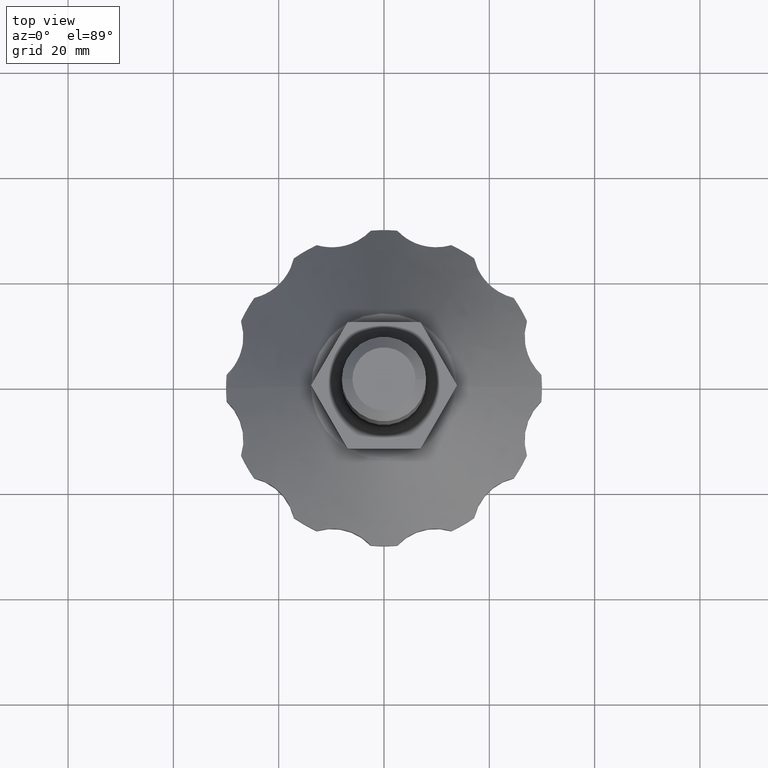
[diagram: clean part render]
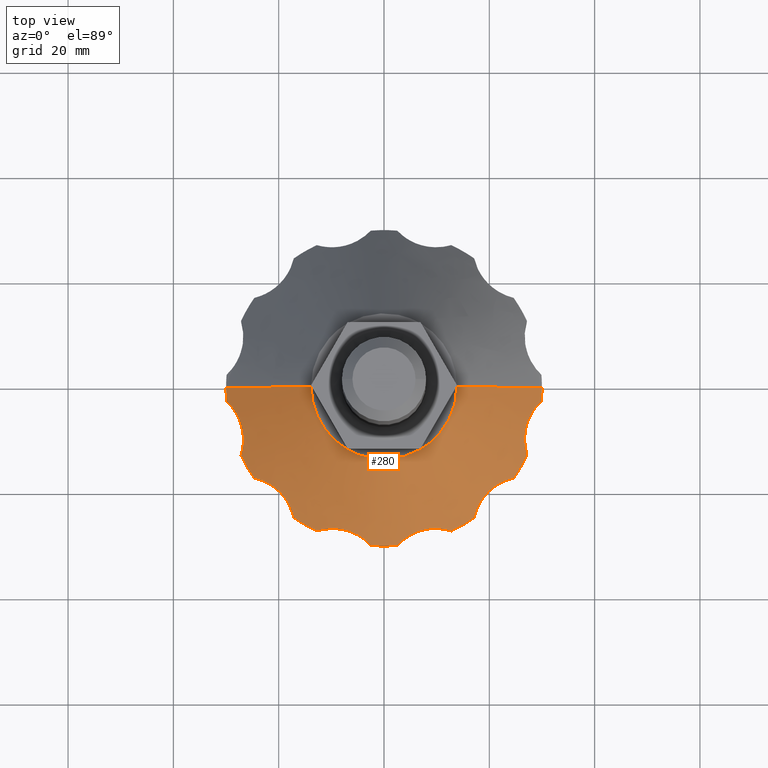
[diagram: same view with one face highlighted and labeled with its STEP entity id]
A machine part, top view. The second image highlights one B-rep face of the part: STEP entity #280.
In plain terms, the highlighted face is a freeform B-spline surface patch.
Its self-contained STEP definition (entity closure, byte-faithful):
#280=ADVANCED_FACE('',(#1245),#1244,.T.);
#1244=( BOUNDED_SURFACE() B_SPLINE_SURFACE( 2,1,((#2014,#2015),(#2016,#2017),(#2018,#2019),(#2020,#2021),(#2022,#2023)), .UNSPECIFIED.,.F.,.F.,.F.) B_SPLINE_SURFACE_WITH_KNOTS((3,2,3),(2,2),(0.00000000000E+00,5.00000000000E-01,1.00000000000E+00),(0.00000000000E+00,1.00000000000E+00), .UNSPECIFIED. ) GEOMETRIC_REPRESENTATION_ITEM() RATIONAL_B_SPLINE_SURFACE(((1.00000000000E+00,1.00000000000E+00),(7.07106781187E-01,7.07106781187E-01),(1.00000000000E+00,1.00000000000E+00),(7.07106781187E-01,7.07106781187E-01),(1.00000000000E+00,1.00000000000E+00))) REPRESENTATION_ITEM('') SURFACE() );
#1245=FACE_OUTER_BOUND('',#2024,.T.);
#2014=CARTESIAN_POINT('',(1.38500000000E+01,-3.39227163364E-15,3.00000000000E+01));
#2015=CARTESIAN_POINT('',(3.00007658349E+01,-7.34806837032E-15,1.09990990178E+01));
#2016=CARTESIAN_POINT('',(1.38500000000E+01,-1.38500000000E+01,3.00000000000E+01));
#2017=CARTESIAN_POINT('',(3.00007658349E+01,-3.00007658349E+01,1.09990990178E+01));
#2018=CARTESIAN_POINT('',(-2.54420372523E-15,-1.38500000000E+01,3.00000000000E+01));
#2019=CARTESIAN_POINT('',(-5.51105127774E-15,-3.00007658349E+01,1.09990990178E+01));
#2020=CARTESIAN_POINT('',(-1.38500000000E+01,-1.38500000000E+01,3.00000000000E+01));
#2021=CARTESIAN_POINT('',(-3.00007658349E+01,-3.00007658349E+01,1.09990990178E+01));
#2022=CARTESIAN_POINT('',(-1.38500000000E+01,1.69613581682E-15,3.00000000000E+01));
#2023=CARTESIAN_POINT('',(-3.00007658349E+01,3.67403418516E-15,1.09990990178E+01));
#2024=EDGE_LOOP('',(#2606,#2607,#2608,#2609,#2610,#2611,#2612,#2613,#2614,#2615,#2616,#2617,#2618,#2619,#2620,#2621,#2622,#2623,#2624,#2625));
#2606=ORIENTED_EDGE('',*,*,#2914,.F.);
#2607=ORIENTED_EDGE('',*,*,#2924,.T.);
#2608=ORIENTED_EDGE('',*,*,#2872,.F.);
#2609=ORIENTED_EDGE('',*,*,#2854,.T.);
#2610=ORIENTED_EDGE('',*,*,#2870,.F.);
#2611=ORIENTED_EDGE('',*,*,#2850,.T.);
#2612=ORIENTED_EDGE('',*,*,#2875,.F.);
#2613=ORIENTED_EDGE('',*,*,#2846,.T.);
#2614=ORIENTED_EDGE('',*,*,#2922,.F.);
#2615=ORIENTED_EDGE('',*,*,#2923,.T.);
#2616=ORIENTED_EDGE('',*,*,#2919,.F.);
#2617=ORIENTED_EDGE('',*,*,#2842,.T.);
#2618=ORIENTED_EDGE('',*,*,#2918,.F.);
#2619=ORIENTED_EDGE('',*,*,#2933,.F.);
#2620=ORIENTED_EDGE('',*,*,#2822,.T.);
#2621=ORIENTED_EDGE('',*,*,#2899,.T.);
#2622=ORIENTED_EDGE('',*,*,#2909,.T.);
#2623=ORIENTED_EDGE('',*,*,#2902,.T.);
#2624=ORIENTED_EDGE('',*,*,#2908,.T.);
#2625=ORIENTED_EDGE('',*,*,#2934,.T.);
#2822=EDGE_CURVE('',#3786,#3800,#3807,.T.);
#2842=EDGE_CURVE('',#3925,#3940,#3947,.T.);
#2846=EDGE_CURVE('',#3953,#3968,#3975,.T.);
#2850=EDGE_CURVE('',#3981,#3996,#4003,.T.);
#2854=EDGE_CURVE('',#4009,#4024,#4031,.T.);
#2870=EDGE_CURVE('',#3981,#4024,#4141,.T.);
#2872=EDGE_CURVE('',#4009,#4154,#4155,.T.);
#2875=EDGE_CURVE('',#3953,#3996,#4173,.T.);
#2899=EDGE_CURVE('',#3800,#4321,#4328,.T.);
#2902=EDGE_CURVE('',#4320,#4340,#4347,.T.);
#2908=EDGE_CURVE('',#4340,#3773,#4385,.T.);
#2909=EDGE_CURVE('',#4321,#4320,#4391,.T.);
#2914=EDGE_CURVE('',#4415,#4422,#4423,.T.);
#2918=EDGE_CURVE('',#4441,#3940,#4448,.T.);
#2919=EDGE_CURVE('',#3925,#4454,#4455,.T.);
#2922=EDGE_CURVE('',#4467,#3968,#4474,.T.);
#2923=EDGE_CURVE('',#4467,#4454,#4480,.T.);
#2924=EDGE_CURVE('',#4415,#4154,#4486,.T.);
#2933=EDGE_CURVE('',#3786,#4441,#4544,.T.);
#2934=EDGE_CURVE('',#3773,#4422,#4550,.T.);
#3773=VERTEX_POINT('',#5179);
#3786=VERTEX_POINT('',#5185);
#3800=VERTEX_POINT('',#5194);
#3807=(BOUNDED_CURVE() B_SPLINE_CURVE(2,(#5197,#5198,#5199),.UNSPECIFIED.,.F.,.F.) B_SPLINE_CURVE_WITH_KNOTS((3,3),(0.00000000000E+00,1.00000000000E+00),.UNSPECIFIED.) CURVE() GEOMETRIC_REPRESENTATION_ITEM() RATIONAL_B_SPLINE_CURVE((1.00000000000E+00,8.66025410981E-01,1.00000000000E+00)) REPRESENTATION_ITEM('') );
#3925=VERTEX_POINT('',#5310);
#3940=VERTEX_POINT('',#5320);
#3947=(BOUNDED_CURVE() B_SPLINE_CURVE(3,(#5324,#5325,#5326,#5327,#5328,#5329,#5330,#5331,#5332,#5333,#5334,#5335,#5336,#5337,#5338,#5339,#5340,#5341,#5342,#5343,#5344,#5345,#5346,#5347),.UNSPECIFIED.,.F.,.F.) B_SPLINE_CURVE_WITH_KNOTS((4,2,2,2,2,2,2,2,2,2,2,4),(2.64582014218E-07,1.54217607988E-03,2.31313182881E-03,3.08408757774E-03,4.62599907560E-03,5.39695482453E-03,6.16791057346E-03,6.93886632239E-03,7.70982207132E-03,9.25173356918E-03,1.07936450670E-02,1.23355565649E-02),.UNSPECIFIED.) CURVE() GEOMETRIC_REPRESENTATION_ITEM() RATIONAL_B_SPLINE_CURVE((1.00000000000E+00,1.00000000000E+00,1.00000000000E+00,1.00000000000E+00,1.00000000000E+00,1.00000000000E+00,1.00000000000E+00,1.00000000000E+00,1.00000000000E+00,1.00000000000E+00,1.00000000000E+00,1.00000000000E+00,1.00000000000E+00,1.00000000000E+00,1.00000000000E+00,1.00000000000E+00,1.00000000000E+00,1.00000000000E+00,1.00000000000E+00,1.00000000000E+00,1.00000000000E+00,1.00000000000E+00,1.00000000000E+00,1.00000000000E+00)) REPRESENTATION_ITEM('') );
#3953=VERTEX_POINT('',#5348);
#3968=VERTEX_POINT('',#5358);
#3975=(BOUNDED_CURVE() B_SPLINE_CURVE(3,(#5362,#5363,#5364,#5365,#5366,#5367,#5368,#5369,#5370,#5371,#5372,#5373,#5374,#5375,#5376,#5377,#5378,#5379,#5380,#5381,#5382,#5383,#5384,#5385),.UNSPECIFIED.,.F.,.F.) B_SPLINE_CURVE_WITH_KNOTS((4,2,2,2,2,2,2,2,2,2,2,4),(3.20361951383E-07,1.54223168861E-03,2.31318735194E-03,3.08414301527E-03,4.62605434193E-03,5.39701000527E-03,6.16796566860E-03,6.93892133193E-03,7.70987699526E-03,9.25178832192E-03,1.07936996486E-02,1.23356109752E-02),.UNSPECIFIED.) CURVE() GEOMETRIC_REPRESENTATION_ITEM() RATIONAL_B_SPLINE_CURVE((1.00000000000E+00,1.00000000000E+00,1.00000000000E+00,1.00000000000E+00,1.00000000000E+00,1.00000000000E+00,1.00000000000E+00,1.00000000000E+00,1.00000000000E+00,1.00000000000E+00,1.00000000000E+00,1.00000000000E+00,1.00000000000E+00,1.00000000000E+00,1.00000000000E+00,1.00000000000E+00,1.00000000000E+00,1.00000000000E+00,1.00000000000E+00,1.00000000000E+00,1.00000000000E+00,1.00000000000E+00,1.00000000000E+00,1.00000000000E+00)) REPRESENTATION_ITEM('') );
#3981=VERTEX_POINT('',#5386);
#3996=VERTEX_POINT('',#5396);
#4003=(BOUNDED_CURVE() B_SPLINE_CURVE(3,(#5400,#5401,#5402,#5403,#5404,#5405,#5406,#5407,#5408,#5409,#5410,#5411,#5412,#5413,#5414,#5415,#5416,#5417,#5418,#5419,#5420,#5421,#5422,#5423),.UNSPECIFIED.,.F.,.F.) B_SPLINE_CURVE_WITH_KNOTS((4,2,2,2,2,2,2,2,2,2,2,4),(2.64582014228E-07,1.54217607988E-03,2.31313182881E-03,3.08408757774E-03,4.62599907560E-03,5.39695482453E-03,6.16791057346E-03,6.93886632239E-03,7.70982207132E-03,9.25173356918E-03,1.07936450670E-02,1.23355565649E-02),.UNSPECIFIED.) CURVE() GEOMETRIC_REPRESENTATION_ITEM() RATIONAL_B_SPLINE_CURVE((1.00000000000E+00,1.00000000000E+00,1.00000000000E+00,1.00000000000E+00,1.00000000000E+00,1.00000000000E+00,1.00000000000E+00,1.00000000000E+00,1.00000000000E+00,1.00000000000E+00,1.00000000000E+00,1.00000000000E+00,1.00000000000E+00,1.00000000000E+00,1.00000000000E+00,1.00000000000E+00,1.00000000000E+00,1.00000000000E+00,1.00000000000E+00,1.00000000000E+00,1.00000000000E+00,1.00000000000E+00,1.00000000000E+00,1.00000000000E+00)) REPRESENTATION_ITEM('') );
#4009=VERTEX_POINT('',#5424);
#4024=VERTEX_POINT('',#5434);
#4031=(BOUNDED_CURVE() B_SPLINE_CURVE(3,(#5438,#5439,#5440,#5441,#5442,#5443,#5444,#5445,#5446,#5447,#5448,#5449,#5450,#5451,#5452,#5453,#5454,#5455,#5456,#5457,#5458,#5459,#5460,#5461),.UNSPECIFIED.,.F.,.F.) B_SPLINE_CURVE_WITH_KNOTS((4,2,2,2,2,2,2,2,2,2,2,4),(2.59932542005E-07,1.54217121241E-03,2.31312685235E-03,3.08408249228E-03,4.62599377215E-03,5.39694941209E-03,6.16790505202E-03,6.93886069196E-03,7.70981633189E-03,9.25172761176E-03,1.07936388916E-02,1.23355501715E-02),.UNSPECIFIED.) CURVE() GEOMETRIC_REPRESENTATION_ITEM() RATIONAL_B_SPLINE_CURVE((1.00000000000E+00,1.00000000000E+00,1.00000000000E+00,1.00000000000E+00,1.00000000000E+00,1.00000000000E+00,1.00000000000E+00,1.00000000000E+00,1.00000000000E+00,1.00000000000E+00,1.00000000000E+00,1.00000000000E+00,1.00000000000E+00,1.00000000000E+00,1.00000000000E+00,1.00000000000E+00,1.00000000000E+00,1.00000000000E+00,1.00000000000E+00,1.00000000000E+00,1.00000000000E+00,1.00000000000E+00,1.00000000000E+00,1.00000000000E+00)) REPRESENTATION_ITEM('') );
#4141=CIRCLE('',#5593,3.00000000000E+01);
#4154=VERTEX_POINT('',#5599);
#4155=CIRCLE('',#5603,3.00000000000E+01);
#4173=CIRCLE('',#5614,3.00000000000E+01);
#4320=VERTEX_POINT('',#5706);
#4321=VERTEX_POINT('',#5707);
#4328=(BOUNDED_CURVE() B_SPLINE_CURVE(2,(#5710,#5711,#5712),.UNSPECIFIED.,.F.,.F.) B_SPLINE_CURVE_WITH_KNOTS((3,3),(0.00000000000E+00,1.00000000000E+00),.UNSPECIFIED.) CURVE() GEOMETRIC_REPRESENTATION_ITEM() RATIONAL_B_SPLINE_CURVE((1.00000000000E+00,9.99999919647E-01,1.00000000000E+00)) REPRESENTATION_ITEM('') );
#4340=VERTEX_POINT('',#5715);
#4347=(BOUNDED_CURVE() B_SPLINE_CURVE(2,(#5719,#5720,#5721),.UNSPECIFIED.,.F.,.F.) B_SPLINE_CURVE_WITH_KNOTS((3,3),(0.00000000000E+00,1.00000000000E+00),.UNSPECIFIED.) CURVE() GEOMETRIC_REPRESENTATION_ITEM() RATIONAL_B_SPLINE_CURVE((1.00000000000E+00,9.99999919647E-01,1.00000000000E+00)) REPRESENTATION_ITEM('') );
#4385=CIRCLE('',#5743,1.38500000000E+01);
#4391=(BOUNDED_CURVE() B_SPLINE_CURVE(2,(#5744,#5745,#5746),.UNSPECIFIED.,.F.,.F.) B_SPLINE_CURVE_WITH_KNOTS((3,3),(0.00000000000E+00,1.00000000000E+00),.UNSPECIFIED.) CURVE() GEOMETRIC_REPRESENTATION_ITEM() RATIONAL_B_SPLINE_CURVE((1.00000000000E+00,8.66425992780E-01,1.00000000000E+00)) REPRESENTATION_ITEM('') );
#4415=VERTEX_POINT('',#5759);
#4422=VERTEX_POINT('',#5763);
#4423=CIRCLE('',#5767,3.00000000000E+01);
#4441=VERTEX_POINT('',#5776);
#4448=CIRCLE('',#5784,3.00000000000E+01);
#4454=VERTEX_POINT('',#5785);
#4455=CIRCLE('',#5789,3.00000000000E+01);
#4467=VERTEX_POINT('',#5793);
#4474=CIRCLE('',#5800,3.00000000000E+01);
#4480=(BOUNDED_CURVE() B_SPLINE_CURVE(3,(#5801,#5802,#5803,#5804,#5805,#5806,#5807,#5808,#5809,#5810,#5811,#5812,#5813,#5814,#5815,#5816,#5817,#5818,#5819,#5820,#5821,#5822,#5823,#5824),.UNSPECIFIED.,.F.,.F.) B_SPLINE_CURVE_WITH_KNOTS((4,2,2,2,2,2,2,2,2,2,2,4),(2.59932541972E-07,1.54217121241E-03,2.31312685235E-03,3.08408249228E-03,4.62599377215E-03,5.39694941209E-03,6.16790505202E-03,6.93886069196E-03,7.70981633189E-03,9.25172761176E-03,1.07936388916E-02,1.23355501715E-02),.UNSPECIFIED.) CURVE() GEOMETRIC_REPRESENTATION_ITEM() RATIONAL_B_SPLINE_CURVE((1.00000000000E+00,1.00000000000E+00,1.00000000000E+00,1.00000000000E+00,1.00000000000E+00,1.00000000000E+00,1.00000000000E+00,1.00000000000E+00,1.00000000000E+00,1.00000000000E+00,1.00000000000E+00,1.00000000000E+00,1.00000000000E+00,1.00000000000E+00,1.00000000000E+00,1.00000000000E+00,1.00000000000E+00,1.00000000000E+00,1.00000000000E+00,1.00000000000E+00,1.00000000000E+00,1.00000000000E+00,1.00000000000E+00,1.00000000000E+00)) REPRESENTATION_ITEM('') );
#4486=(BOUNDED_CURVE() B_SPLINE_CURVE(3,(#5825,#5826,#5827,#5828,#5829,#5830,#5831,#5832,#5833,#5834,#5835,#5836,#5837,#5838,#5839,#5840,#5841,#5842,#5843,#5844,#5845,#5846,#5847,#5848),.UNSPECIFIED.,.F.,.F.) B_SPLINE_CURVE_WITH_KNOTS((4,2,2,2,2,2,2,2,2,2,2,4),(3.20361951334E-07,1.54223168861E-03,2.31318735194E-03,3.08414301527E-03,4.62605434193E-03,5.39701000527E-03,6.16796566860E-03,6.93892133193E-03,7.70987699526E-03,9.25178832192E-03,1.07936996486E-02,1.23356109752E-02),.UNSPECIFIED.) CURVE() GEOMETRIC_REPRESENTATION_ITEM() RATIONAL_B_SPLINE_CURVE((1.00000000000E+00,1.00000000000E+00,1.00000000000E+00,1.00000000000E+00,1.00000000000E+00,1.00000000000E+00,1.00000000000E+00,1.00000000000E+00,1.00000000000E+00,1.00000000000E+00,1.00000000000E+00,1.00000000000E+00,1.00000000000E+00,1.00000000000E+00,1.00000000000E+00,1.00000000000E+00,1.00000000000E+00,1.00000000000E+00,1.00000000000E+00,1.00000000000E+00,1.00000000000E+00,1.00000000000E+00,1.00000000000E+00,1.00000000000E+00)) REPRESENTATION_ITEM('') );
#4544=(BOUNDED_CURVE() B_SPLINE_CURVE(1,(#5879,#5880),.UNSPECIFIED.,.F.,.F.) B_SPLINE_CURVE_WITH_KNOTS((2,2),(0.00000000000E+00,9.99952583014E-01),.UNSPECIFIED.) CURVE() GEOMETRIC_REPRESENTATION_ITEM() RATIONAL_B_SPLINE_CURVE((1.00000000000E+00,1.00000000000E+00)) REPRESENTATION_ITEM('') );
#4550=(BOUNDED_CURVE() B_SPLINE_CURVE(1,(#5881,#5882),.UNSPECIFIED.,.F.,.F.) B_SPLINE_CURVE_WITH_KNOTS((2,2),(0.00000000000E+00,1.00000000000E+00),.UNSPECIFIED.) CURVE() GEOMETRIC_REPRESENTATION_ITEM() RATIONAL_B_SPLINE_CURVE((7.50000000000E-01,7.50000000000E-01)) REPRESENTATION_ITEM('') );
#5179=CARTESIAN_POINT('',(-1.38500000000E+01,8.67361737988E-16,3.00000000000E+01));
#5185=CARTESIAN_POINT('',(1.38500000000E+01,2.60208521397E-15,3.00000000000E+01));
#5194=CARTESIAN_POINT('',(6.92500034525E+00,-1.19944516431E+01,3.00000000000E+01));
#5197=CARTESIAN_POINT('',(1.38500000000E+01,0.00000000000E+00,3.00000000000E+01));
#5198=CARTESIAN_POINT('',(1.38500000000E+01,-7.99630096250E+00,3.00000000000E+01));
#5199=CARTESIAN_POINT('',(6.92500034525E+00,-1.19944516431E+01,3.00000000000E+01));
#5310=CARTESIAN_POINT('',(2.71458873925E+01,-1.27710915962E+01,1.10000000000E+01));
#5320=CARTESIAN_POINT('',(2.98945741392E+01,-2.51285436012E+00,1.10000000000E+01));
#5324=CARTESIAN_POINT('',(2.71458874354E+01,-1.27710917360E+01,1.10000002199E+01));
#5325=CARTESIAN_POINT('',(2.70266444296E+01,-1.23828453378E+01,1.13213840486E+01));
#5326=CARTESIAN_POINT('',(2.69279323332E+01,-1.19780803252E+01,1.16240062431E+01));
#5327=CARTESIAN_POINT('',(2.68165951845E+01,-1.13393127835E+01,1.20413010774E+01));
#5328=CARTESIAN_POINT('',(2.67856418039E+01,-1.11210831804E+01,1.21742483074E+01));
#5329=CARTESIAN_POINT('',(2.67377210312E+01,-1.06721966654E+01,1.24256161551E+01));
#5330=CARTESIAN_POINT('',(2.67207986216E+01,-1.04408701961E+01,1.25442453490E+01));
#5331=CARTESIAN_POINT('',(2.66946850316E+01,-9.73894608204E+00,1.28677000731E+01));
#5332=CARTESIAN_POINT('',(2.67092209926E+01,-9.25679760961E+00,1.30428890816E+01));
#5333=CARTESIAN_POINT('',(2.67907428662E+01,-8.50571211422E+00,1.32264962782E+01));
#5334=CARTESIAN_POINT('',(2.68279916549E+01,-8.25198662097E+00,1.32737938046E+01));
#5335=CARTESIAN_POINT('',(2.69216535676E+01,-7.74998987960E+00,1.33366994791E+01));
#5336=CARTESIAN_POINT('',(2.69782303781E+01,-7.49998821336E+00,1.33527665969E+01));
#5337=CARTESIAN_POINT('',(2.71114340807E+01,-7.00202541499E+00,1.33531136495E+01));
#5338=CARTESIAN_POINT('',(2.71887970428E+01,-6.75222365016E+00,1.33370187894E+01));
#5339=CARTESIAN_POINT('',(2.73594235269E+01,-6.26824084487E+00,1.32739648627E+01));
#5340=CARTESIAN_POINT('',(2.74527700860E+01,-6.03309538153E+00,1.32272786773E+01));
#5341=CARTESIAN_POINT('',(2.77551564812E+01,-5.34656315490E+00,1.30456575007E+01));
#5342=CARTESIAN_POINT('',(2.79887749309E+01,-4.91153485894E+00,1.28668107963E+01));
#5343=CARTESIAN_POINT('',(2.84848111054E+01,-4.12172014694E+00,1.24373280020E+01));
#5344=CARTESIAN_POINT('',(2.87494499895E+01,-3.76095908609E+00,1.21857413405E+01));
#5345=CARTESIAN_POINT('',(2.93068171025E+01,-3.09321425916E+00,1.16266447996E+01));
#5346=CARTESIAN_POINT('',(2.95969996401E+01,-2.78963495678E+00,1.13215824949E+01));
#5347=CARTESIAN_POINT('',(2.98945741082E+01,-2.51285428599E+00,1.10000000437E+01));
#5348=CARTESIAN_POINT('',(2.51285467329E+00,-2.98945736918E+01,1.10000000000E+01));
#5358=CARTESIAN_POINT('',(1.27710913577E+01,-2.71458878199E+01,1.10000000000E+01));
#5362=CARTESIAN_POINT('',(2.51285452678E+00,-2.98945738493E+01,1.10000003235E+01));
#5363=CARTESIAN_POINT('',(2.78946408521E+00,-2.95971833699E+01,1.13213839369E+01));
#5364=CARTESIAN_POINT('',(3.09064468017E+00,-2.93093137765E+01,1.16240060317E+01));
#5365=CARTESIAN_POINT('',(3.58816497566E+00,-2.88935092027E+01,1.20413008703E+01));
#5366=CARTESIAN_POINT('',(3.76168067690E+00,-2.87575879612E+01,1.21742481272E+01));
#5367=CARTESIAN_POINT('',(4.12646752328E+00,-2.84916439945E+01,1.24256160713E+01));
#5368=CARTESIAN_POINT('',(4.31834084965E+00,-2.83613255631E+01,1.25442452259E+01));
#5369=CARTESIAN_POINT('',(4.91316787168E+00,-2.79877486147E+01,1.28676998348E+01));
#5370=CARTESIAN_POINT('',(5.33798862991E+00,-2.77592628445E+01,1.30428889154E+01));
#5371=CARTESIAN_POINT('',(6.02920907811E+00,-2.74543198967E+01,1.32264962544E+01));
#5372=CARTESIAN_POINT('',(6.26756592027E+00,-2.73597156490E+01,1.32737937297E+01));
#5373=CARTESIAN_POINT('',(6.74913864311E+00,-2.71898308931E+01,1.33366994264E+01));
#5374=CARTESIAN_POINT('',(6.99393483977E+00,-2.71138269898E+01,1.33527665760E+01));
#5375=CARTESIAN_POINT('',(7.49178530083E+00,-2.69802032965E+01,1.33531136698E+01));
#5376=CARTESIAN_POINT('',(7.74680154606E+00,-2.69223006753E+01,1.33370188092E+01));
#5377=CARTESIAN_POINT('',(8.25125592259E+00,-2.68280761594E+01,1.32739649514E+01));
#5378=CARTESIAN_POINT('',(8.50157109185E+00,-2.67913439030E+01,1.32272788056E+01));
#5379=CARTESIAN_POINT('',(9.24731868307E+00,-2.67099520236E+01,1.30456576875E+01));
#5380=CARTESIAN_POINT('',(9.74087343850E+00,-2.66947573551E+01,1.28668110274E+01));
#5381=CARTESIAN_POINT('',(1.06728909776E+01,-2.67294298398E+01,1.24373283956E+01));
#5382=CARTESIAN_POINT('',(1.11176387677E+01,-2.67782332633E+01,1.21857417385E+01));
#5383=CARTESIAN_POINT('',(1.19746067344E+01,-2.69270549461E+01,1.16266449745E+01));
#5384=CARTESIAN_POINT('',(1.23826052180E+01,-2.70265706841E+01,1.13215828118E+01));
#5385=CARTESIAN_POINT('',(1.27710916665E+01,-2.71458874141E+01,1.10000002774E+01));
#5386=CARTESIAN_POINT('',(-1.27710915962E+01,-2.71458873925E+01,1.10000000000E+01));
#5396=CARTESIAN_POINT('',(-2.51285436012E+00,-2.98945741392E+01,1.10000000000E+01));
#5400=CARTESIAN_POINT('',(-1.27710917360E+01,-2.71458874354E+01,1.10000002199E+01));
#5401=CARTESIAN_POINT('',(-1.23828453378E+01,-2.70266444296E+01,1.13213840486E+01));
#5402=CARTESIAN_POINT('',(-1.19780803252E+01,-2.69279323332E+01,1.16240062431E+01));
#5403=CARTESIAN_POINT('',(-1.13393127835E+01,-2.68165951845E+01,1.20413010774E+01));
#5404=CARTESIAN_POINT('',(-1.11210831804E+01,-2.67856418039E+01,1.21742483074E+01));
#5405=CARTESIAN_POINT('',(-1.06721966654E+01,-2.67377210312E+01,1.24256161551E+01));
#5406=CARTESIAN_POINT('',(-1.04408701961E+01,-2.67207986216E+01,1.25442453490E+01));
#5407=CARTESIAN_POINT('',(-9.73894608204E+00,-2.66946850316E+01,1.28677000731E+01));
#5408=CARTESIAN_POINT('',(-9.25679760961E+00,-2.67092209926E+01,1.30428890816E+01));
#5409=CARTESIAN_POINT('',(-8.50571211422E+00,-2.67907428662E+01,1.32264962782E+01));
#5410=CARTESIAN_POINT('',(-8.25198662097E+00,-2.68279916549E+01,1.32737938046E+01));
#5411=CARTESIAN_POINT('',(-7.74998987960E+00,-2.69216535676E+01,1.33366994791E+01));
#5412=CARTESIAN_POINT('',(-7.49998821336E+00,-2.69782303781E+01,1.33527665969E+01));
#5413=CARTESIAN_POINT('',(-7.00202541499E+00,-2.71114340807E+01,1.33531136495E+01));
#5414=CARTESIAN_POINT('',(-6.75222365016E+00,-2.71887970428E+01,1.33370187894E+01));
#5415=CARTESIAN_POINT('',(-6.26824084487E+00,-2.73594235269E+01,1.32739648627E+01));
#5416=CARTESIAN_POINT('',(-6.03309538153E+00,-2.74527700860E+01,1.32272786773E+01));
#5417=CARTESIAN_POINT('',(-5.34656315490E+00,-2.77551564812E+01,1.30456575007E+01));
#5418=CARTESIAN_POINT('',(-4.91153485894E+00,-2.79887749309E+01,1.28668107963E+01));
#5419=CARTESIAN_POINT('',(-4.12172014694E+00,-2.84848111054E+01,1.24373280020E+01));
#5420=CARTESIAN_POINT('',(-3.76095908609E+00,-2.87494499895E+01,1.21857413405E+01));
#5421=CARTESIAN_POINT('',(-3.09321425916E+00,-2.93068171025E+01,1.16266447996E+01));
#5422=CARTESIAN_POINT('',(-2.78963495678E+00,-2.95969996401E+01,1.13215824949E+01));
#5423=CARTESIAN_POINT('',(-2.51285428599E+00,-2.98945741082E+01,1.10000000437E+01));
#5424=CARTESIAN_POINT('',(-2.46330337192E+01,-1.71234830956E+01,1.10000000000E+01));
#5434=CARTESIAN_POINT('',(-1.71234827815E+01,-2.46330334598E+01,1.10000000000E+01));
#5438=CARTESIAN_POINT('',(-2.46330335003E+01,-1.71234831458E+01,1.09999997162E+01));
#5439=CARTESIAN_POINT('',(-2.42371808075E+01,-1.72143388747E+01,1.13213834825E+01));
#5440=CARTESIAN_POINT('',(-2.38372880170E+01,-1.73312342001E+01,1.16240056261E+01));
#5441=CARTESIAN_POINT('',(-2.32284306071E+01,-1.75541971571E+01,1.20413003781E+01));
#5442=CARTESIAN_POINT('',(-2.30239615677E+01,-1.76365055367E+01,1.21742475798E+01));
#5443=CARTESIAN_POINT('',(-2.26112541269E+01,-1.78194481626E+01,1.24256153702E+01));
#5444=CARTESIAN_POINT('',(-2.24024583470E+01,-1.79204561507E+01,1.25442445448E+01));
#5445=CARTESIAN_POINT('',(-2.17815175028E+01,-1.82488031442E+01,1.28676992195E+01));
#5446=CARTESIAN_POINT('',(-2.13712327182E+01,-1.85024658556E+01,1.30428881925E+01));
#5447=CARTESIAN_POINT('',(-2.07615346576E+01,-1.89486085102E+01,1.32264953585E+01));
#5448=CARTESIAN_POINT('',(-2.05604263337E+01,-1.91077296419E+01,1.32737928892E+01));
#5449=CARTESIAN_POINT('',(-2.01725153981E+01,-1.94398415563E+01,1.33366985702E+01));
#5450=CARTESIAN_POINT('',(-1.99842960335E+01,-1.96138393113E+01,1.33527656940E+01));
#5451=CARTESIAN_POINT('',(-1.96196495068E+01,-1.99781784160E+01,1.33531127715E+01));
#5452=CARTESIAN_POINT('',(-1.94419963375E+01,-2.01700775437E+01,1.33370179314E+01));
#5453=CARTESIAN_POINT('',(-1.91081681830E+01,-2.05598357658E+01,1.32739640449E+01));
#5454=CARTESIAN_POINT('',(-1.89511995248E+01,-2.07582489577E+01,1.32272778829E+01));
#5455=CARTESIAN_POINT('',(-1.85078383994E+01,-2.13633892585E+01,1.30456567924E+01));
#5456=CARTESIAN_POINT('',(-1.82479020667E+01,-2.17832228528E+01,1.28668101565E+01));
#5457=CARTESIAN_POINT('',(-1.78119205238E+01,-2.26077100302E+01,1.24373274932E+01));
#5458=CARTESIAN_POINT('',(-1.76318117124E+01,-2.30172744891E+01,1.21857409094E+01));
#5459=CARTESIAN_POINT('',(-1.73322112562E+01,-2.38338408232E+01,1.16266445539E+01));
#5460=CARTESIAN_POINT('',(-1.72143950793E+01,-2.42369359489E+01,1.13215822734E+01));
#5461=CARTESIAN_POINT('',(-1.71234831709E+01,-2.46330333909E+01,1.09999998050E+01));
#5590=CARTESIAN_POINT('',(0.00000000000E+00,0.00000000000E+00,1.10000000000E+01));
#5591=DIRECTION('',(0.00000000000E+00,0.00000000000E+00,-1.00000000000E+00));
#5592=DIRECTION('',(1.00000000000E+00,-0.00000000000E+00,-0.00000000000E+00));
#5593=AXIS2_PLACEMENT_3D('',#5590,#5591,#5592);
#5599=CARTESIAN_POINT('',(-2.71458878199E+01,-1.27710913577E+01,1.10000000000E+01));
#5600=CARTESIAN_POINT('',(0.00000000000E+00,0.00000000000E+00,1.10000000000E+01));
#5601=DIRECTION('',(0.00000000000E+00,0.00000000000E+00,-1.00000000000E+00));
#5602=DIRECTION('',(1.00000000000E+00,-0.00000000000E+00,-0.00000000000E+00));
#5603=AXIS2_PLACEMENT_3D('',#5600,#5601,#5602);
#5611=CARTESIAN_POINT('',(0.00000000000E+00,0.00000000000E+00,1.10000000000E+01));
#5612=DIRECTION('',(0.00000000000E+00,0.00000000000E+00,-1.00000000000E+00));
#5613=DIRECTION('',(1.00000000000E+00,-0.00000000000E+00,-0.00000000000E+00));
#5614=AXIS2_PLACEMENT_3D('',#5611,#5612,#5613);
#5706=CARTESIAN_POINT('',(-6.91538140669E+00,-1.20000000000E+01,3.00000000000E+01));
#5707=CARTESIAN_POINT('',(6.91538140669E+00,-1.20000000000E+01,3.00000000000E+01));
#5710=CARTESIAN_POINT('',(6.92500034525E+00,-1.19944516431E+01,3.00000000000E+01));
#5711=CARTESIAN_POINT('',(6.92019198809E+00,-1.19972277496E+01,3.00000000000E+01));
#5712=CARTESIAN_POINT('',(6.91538140669E+00,-1.20000000000E+01,3.00000000000E+01));
#5715=CARTESIAN_POINT('',(-6.92500034525E+00,-1.19944516431E+01,3.00000000000E+01));
#5719=CARTESIAN_POINT('',(-6.91538140669E+00,-1.20000000000E+01,3.00000000000E+01));
#5720=CARTESIAN_POINT('',(-6.92019198809E+00,-1.19972277496E+01,3.00000000000E+01));
#5721=CARTESIAN_POINT('',(-6.92500034525E+00,-1.19944516431E+01,3.00000000000E+01));
#5740=CARTESIAN_POINT('',(0.00000000000E+00,0.00000000000E+00,3.00000000000E+01));
#5741=DIRECTION('',(0.00000000000E+00,0.00000000000E+00,-1.00000000000E+00));
#5742=DIRECTION('',(1.00000000000E+00,-0.00000000000E+00,-0.00000000000E+00));
#5743=AXIS2_PLACEMENT_3D('',#5740,#5741,#5742);
#5744=CARTESIAN_POINT('',(6.91538140669E+00,-1.20000000000E+01,3.00000000000E+01));
#5745=CARTESIAN_POINT('',(0.00000000000E+00,-1.59852083333E+01,3.00000000000E+01));
#5746=CARTESIAN_POINT('',(-6.91538140669E+00,-1.20000000000E+01,3.00000000000E+01));
#5759=CARTESIAN_POINT('',(-2.98945736918E+01,-2.51285467329E+00,1.10000000000E+01));
#5763=CARTESIAN_POINT('',(-3.00000000000E+01,-2.97169574338E-07,1.10000000000E+01));
#5764=CARTESIAN_POINT('',(0.00000000000E+00,0.00000000000E+00,1.10000000000E+01));
#5765=DIRECTION('',(0.00000000000E+00,0.00000000000E+00,-1.00000000000E+00));
#5766=DIRECTION('',(1.00000000000E+00,-0.00000000000E+00,-0.00000000000E+00));
#5767=AXIS2_PLACEMENT_3D('',#5764,#5765,#5766);
#5776=CARTESIAN_POINT('',(3.00000000000E+01,-7.34036971090E-15,1.10000000000E+01));
#5781=CARTESIAN_POINT('',(0.00000000000E+00,0.00000000000E+00,1.10000000000E+01));
#5782=DIRECTION('',(0.00000000000E+00,0.00000000000E+00,-1.00000000000E+00));
#5783=DIRECTION('',(9.96485803664E-01,8.37618236145E-02,0.00000000000E+00));
#5784=AXIS2_PLACEMENT_3D('',#5781,#5782,#5783);
#5785=CARTESIAN_POINT('',(2.46330334598E+01,-1.71234827815E+01,1.10000000000E+01));
#5786=CARTESIAN_POINT('',(0.00000000000E+00,0.00000000000E+00,1.10000000000E+01));
#5787=DIRECTION('',(0.00000000000E+00,0.00000000000E+00,-1.00000000000E+00));
#5788=DIRECTION('',(1.00000000000E+00,-0.00000000000E+00,-0.00000000000E+00));
#5789=AXIS2_PLACEMENT_3D('',#5786,#5787,#5788);
#5793=CARTESIAN_POINT('',(1.71234830956E+01,-2.46330337192E+01,1.10000000000E+01));
#5797=CARTESIAN_POINT('',(0.00000000000E+00,0.00000000000E+00,1.10000000000E+01));
#5798=DIRECTION('',(0.00000000000E+00,0.00000000000E+00,-1.00000000000E+00));
#5799=DIRECTION('',(1.00000000000E+00,-0.00000000000E+00,-0.00000000000E+00));
#5800=AXIS2_PLACEMENT_3D('',#5797,#5798,#5799);
#5801=CARTESIAN_POINT('',(1.71234831458E+01,-2.46330335003E+01,1.09999997162E+01));
#5802=CARTESIAN_POINT('',(1.72143388747E+01,-2.42371808075E+01,1.13213834825E+01));
#5803=CARTESIAN_POINT('',(1.73312342001E+01,-2.38372880170E+01,1.16240056261E+01));
#5804=CARTESIAN_POINT('',(1.75541971571E+01,-2.32284306071E+01,1.20413003781E+01));
#5805=CARTESIAN_POINT('',(1.76365055367E+01,-2.30239615677E+01,1.21742475798E+01));
#5806=CARTESIAN_POINT('',(1.78194481626E+01,-2.26112541269E+01,1.24256153702E+01));
#5807=CARTESIAN_POINT('',(1.79204561507E+01,-2.24024583470E+01,1.25442445448E+01));
#5808=CARTESIAN_POINT('',(1.82488031442E+01,-2.17815175028E+01,1.28676992195E+01));
#5809=CARTESIAN_POINT('',(1.85024658556E+01,-2.13712327182E+01,1.30428881925E+01));
#5810=CARTESIAN_POINT('',(1.89486085102E+01,-2.07615346576E+01,1.32264953585E+01));
#5811=CARTESIAN_POINT('',(1.91077296419E+01,-2.05604263337E+01,1.32737928892E+01));
#5812=CARTESIAN_POINT('',(1.94398415563E+01,-2.01725153981E+01,1.33366985702E+01));
#5813=CARTESIAN_POINT('',(1.96138393113E+01,-1.99842960335E+01,1.33527656940E+01));
#5814=CARTESIAN_POINT('',(1.99781784160E+01,-1.96196495068E+01,1.33531127715E+01));
#5815=CARTESIAN_POINT('',(2.01700775437E+01,-1.94419963375E+01,1.33370179314E+01));
#5816=CARTESIAN_POINT('',(2.05598357658E+01,-1.91081681830E+01,1.32739640449E+01));
#5817=CARTESIAN_POINT('',(2.07582489577E+01,-1.89511995248E+01,1.32272778829E+01));
#5818=CARTESIAN_POINT('',(2.13633892585E+01,-1.85078383994E+01,1.30456567924E+01));
#5819=CARTESIAN_POINT('',(2.17832228528E+01,-1.82479020667E+01,1.28668101565E+01));
#5820=CARTESIAN_POINT('',(2.26077100302E+01,-1.78119205238E+01,1.24373274932E+01));
#5821=CARTESIAN_POINT('',(2.30172744891E+01,-1.76318117124E+01,1.21857409094E+01));
#5822=CARTESIAN_POINT('',(2.38338408232E+01,-1.73322112562E+01,1.16266445539E+01));
#5823=CARTESIAN_POINT('',(2.42369359489E+01,-1.72143950793E+01,1.13215822734E+01));
#5824=CARTESIAN_POINT('',(2.46330333909E+01,-1.71234831709E+01,1.09999998050E+01));
#5825=CARTESIAN_POINT('',(-2.98945738493E+01,-2.51285452678E+00,1.10000003235E+01));
#5826=CARTESIAN_POINT('',(-2.95971833699E+01,-2.78946408521E+00,1.13213839369E+01));
#5827=CARTESIAN_POINT('',(-2.93093137765E+01,-3.09064468017E+00,1.16240060317E+01));
#5828=CARTESIAN_POINT('',(-2.88935092027E+01,-3.58816497566E+00,1.20413008703E+01));
#5829=CARTESIAN_POINT('',(-2.87575879612E+01,-3.76168067690E+00,1.21742481272E+01));
#5830=CARTESIAN_POINT('',(-2.84916439945E+01,-4.12646752328E+00,1.24256160713E+01));
#5831=CARTESIAN_POINT('',(-2.83613255631E+01,-4.31834084965E+00,1.25442452259E+01));
#5832=CARTESIAN_POINT('',(-2.79877486147E+01,-4.91316787168E+00,1.28676998348E+01));
#5833=CARTESIAN_POINT('',(-2.77592628445E+01,-5.33798862991E+00,1.30428889154E+01));
#5834=CARTESIAN_POINT('',(-2.74543198967E+01,-6.02920907811E+00,1.32264962544E+01));
#5835=CARTESIAN_POINT('',(-2.73597156490E+01,-6.26756592027E+00,1.32737937297E+01));
#5836=CARTESIAN_POINT('',(-2.71898308931E+01,-6.74913864311E+00,1.33366994264E+01));
#5837=CARTESIAN_POINT('',(-2.71138269898E+01,-6.99393483977E+00,1.33527665760E+01));
#5838=CARTESIAN_POINT('',(-2.69802032965E+01,-7.49178530083E+00,1.33531136698E+01));
#5839=CARTESIAN_POINT('',(-2.69223006753E+01,-7.74680154606E+00,1.33370188092E+01));
#5840=CARTESIAN_POINT('',(-2.68280761594E+01,-8.25125592259E+00,1.32739649514E+01));
#5841=CARTESIAN_POINT('',(-2.67913439030E+01,-8.50157109185E+00,1.32272788056E+01));
#5842=CARTESIAN_POINT('',(-2.67099520236E+01,-9.24731868307E+00,1.30456576875E+01));
#5843=CARTESIAN_POINT('',(-2.66947573551E+01,-9.74087343850E+00,1.28668110274E+01));
#5844=CARTESIAN_POINT('',(-2.67294298398E+01,-1.06728909776E+01,1.24373283956E+01));
#5845=CARTESIAN_POINT('',(-2.67782332633E+01,-1.11176387677E+01,1.21857417385E+01));
#5846=CARTESIAN_POINT('',(-2.69270549461E+01,-1.19746067344E+01,1.16266449745E+01));
#5847=CARTESIAN_POINT('',(-2.70265706841E+01,-1.23826052180E+01,1.13215828118E+01));
#5848=CARTESIAN_POINT('',(-2.71458874141E+01,-1.27710916665E+01,1.10000002774E+01));
#5879=CARTESIAN_POINT('',(1.38500000000E+01,-3.39227163364E-15,3.00000000000E+01));
#5880=CARTESIAN_POINT('',(3.00000000142E+01,-7.34788079837E-15,1.09999999833E+01));
#5881=CARTESIAN_POINT('',(-1.38500000000E+01,3.55271367880E-15,3.00000000000E+01));
#5882=CARTESIAN_POINT('',(-3.00007658349E+01,8.28966525053E-15,1.09990990178E+01));